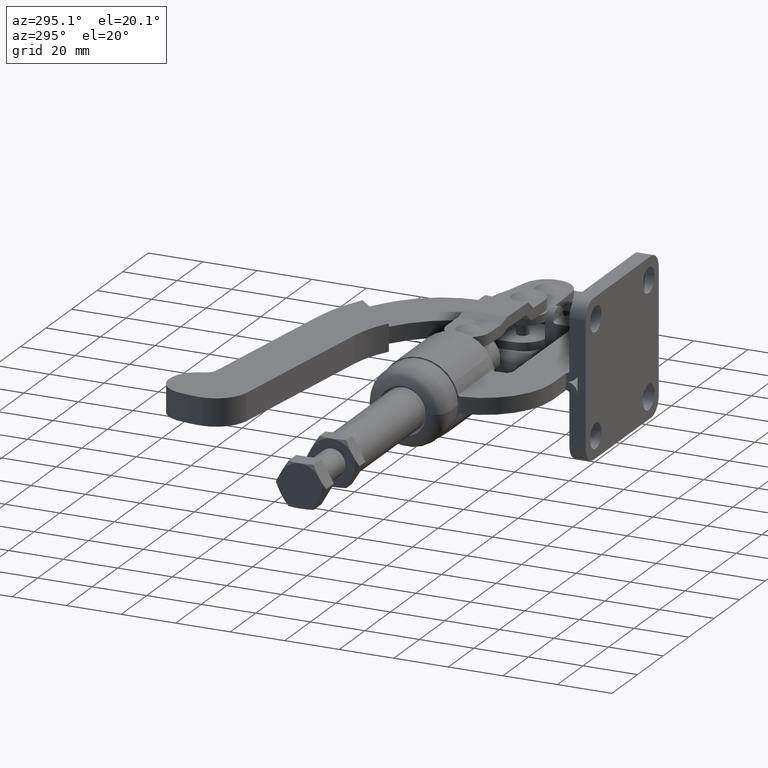
[diagram: clean part render]
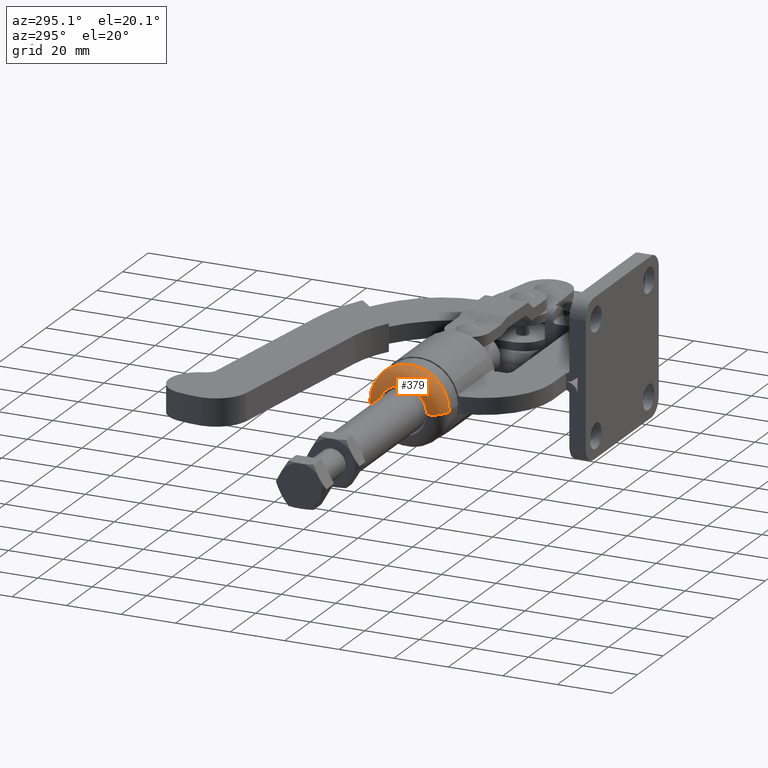
[diagram: same view with one face highlighted and labeled with its STEP entity id]
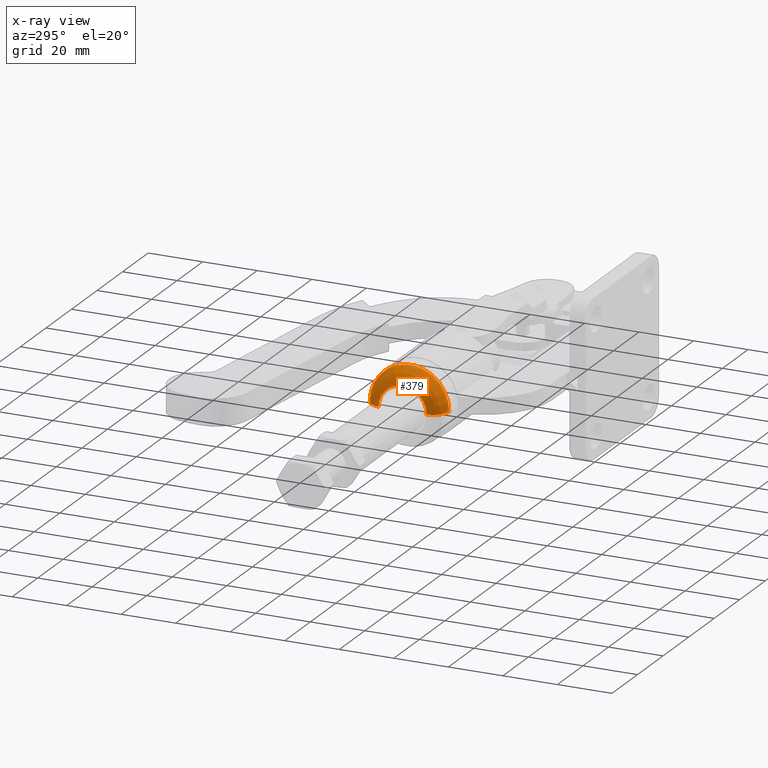
[diagram: x-ray of the same camera — body ghosted, the highlighted face saturated]
A machine part, auxiliary view. The second image highlights one B-rep face of the part: STEP entity #379.
The next image is the same camera in x-ray: the body ghosted, the highlighted face saturated — about 0% of this face is hidden behind the body in this view.
In plain terms, the highlighted toroidal blend (fillet) surface has major radius 8.3 mm and minor (blend) radius 6 mm.
Its self-contained STEP definition (entity closure, byte-faithful):
#198 = VERTEX_POINT ( 'NONE', #4567 ) ;
#379 = ADVANCED_FACE ( 'NONE', ( #5317 ), #1077, .T. ) ;
#457 = AXIS2_PLACEMENT_3D ( 'NONE', #7557, #3058, #8311 ) ;
#464 = DIRECTION ( 'NONE',  ( -1.574690311765622300E-015, -1.000000000000000000, 0.0000000000000000000 ) ) ;
#534 = AXIS2_PLACEMENT_3D ( 'NONE', #9445, #4949, #464 ) ;
#822 = DIRECTION ( 'NONE',  ( -1.281662735122733100E-015, -1.000000000000000000, 0.0000000000000000000 ) ) ;
#1066 = DIRECTION ( 'NONE',  ( -1.000000000000000000, 1.281662735122733100E-015, -0.0000000000000000000 ) ) ;
#1077 = TOROIDAL_SURFACE ( 'NONE', #5042, 8.299999999999982900, 6.000000000000003600 ) ;
#1179 = VERTEX_POINT ( 'NONE', #7286 ) ;
#1196 = CIRCLE ( 'NONE', #2653, 6.000000000000005300 ) ;
#1698 = ORIENTED_EDGE ( 'NONE', *, *, #6302, .T. ) ;
#1912 = VERTEX_POINT ( 'NONE', #5757 ) ;
#2453 = CARTESIAN_POINT ( 'NONE',  ( -116.0674758126467800, 49.70000000000013800, -9.311030284719208500E-013 ) ) ;
#2653 = AXIS2_PLACEMENT_3D ( 'NONE', #4431, #9678, #5191 ) ;
#2801 = CARTESIAN_POINT ( 'NONE',  ( -122.0455025418542200, 50.21302672920762700, -9.310402008177406900E-013 ) ) ;
#3005 = ORIENTED_EDGE ( 'NONE', *, *, #5685, .F. ) ;
#3058 = DIRECTION ( 'NONE',  ( -1.000000000000000000, 1.281662735122733100E-015, -0.0000000000000000000 ) ) ;
#3196 = DIRECTION ( 'NONE',  ( 0.0000000000000000000, -1.000000000000000000, -1.224646799147308300E-016 ) ) ;
#3416 = CIRCLE ( 'NONE', #534, 8.813026729207459600 ) ;
#3469 = CARTESIAN_POINT ( 'NONE',  ( -116.0674758126467900, 41.40000000000016200, -9.321194853152132200E-013 ) ) ;
#3574 = ORIENTED_EDGE ( 'NONE', *, *, #5438, .T. ) ;
#3633 = ORIENTED_EDGE ( 'NONE', *, *, #5058, .F. ) ;
#4431 = CARTESIAN_POINT ( 'NONE',  ( -116.0674758126468000, 33.10000000000017900, -9.321194853152132200E-013 ) ) ;
#4567 = CARTESIAN_POINT ( 'NONE',  ( -116.0674758126468000, 27.10000000000017200, -9.321194853152132200E-013 ) ) ;
#4883 = EDGE_LOOP ( 'NONE', ( #1698, #3574, #3633, #3005 ) ) ;
#4949 = DIRECTION ( 'NONE',  ( -1.000000000000000000, 1.281662735122733100E-015, -0.0000000000000000000 ) ) ;
#5042 = AXIS2_PLACEMENT_3D ( 'NONE', #3469, #1066, #822 ) ;
#5058 = EDGE_CURVE ( 'NONE', #1912, #9593, #3416, .T. ) ;
#5191 = DIRECTION ( 'NONE',  ( -1.000000000000000000, 0.0000000000000000000, 0.0000000000000000000 ) ) ;
#5317 = FACE_OUTER_BOUND ( 'NONE', #4883, .T. ) ;
#5438 = EDGE_CURVE ( 'NONE', #1179, #9593, #6356, .T. ) ;
#5685 = EDGE_CURVE ( 'NONE', #198, #1912, #1196, .T. ) ;
#5757 = CARTESIAN_POINT ( 'NONE',  ( -122.0455025418542500, 32.58697327079270400, -9.321194853152132200E-013 ) ) ;
#6302 = EDGE_CURVE ( 'NONE', #198, #1179, #9288, .T. ) ;
#6356 = CIRCLE ( 'NONE', #6863, 6.000000000000005300 ) ;
#6863 = AXIS2_PLACEMENT_3D ( 'NONE', #2453, #7698, #3196 ) ;
#7286 = CARTESIAN_POINT ( 'NONE',  ( -116.0674758126467800, 55.70000000000014500, -9.303682403924324900E-013 ) ) ;
#7557 = CARTESIAN_POINT ( 'NONE',  ( -116.0674758126467900, 41.40000000000016200, -9.321194853152132200E-013 ) ) ;
#7698 = DIRECTION ( 'NONE',  ( -1.569584166154497000E-031, -1.224646799147353200E-016, 1.000000000000000000 ) ) ;
#8311 = DIRECTION ( 'NONE',  ( -9.704746718751376700E-016, -1.000000000000000000, 0.0000000000000000000 ) ) ;
#9288 = CIRCLE ( 'NONE', #457, 14.29999999999998600 ) ;
#9445 = CARTESIAN_POINT ( 'NONE',  ( -122.0455025418542300, 41.40000000000016900, -9.321194853152132200E-013 ) ) ;
#9593 = VERTEX_POINT ( 'NONE', #2801 ) ;
#9678 = DIRECTION ( 'NONE',  ( 0.0000000000000000000, -0.0000000000000000000, -1.000000000000000000 ) ) ;